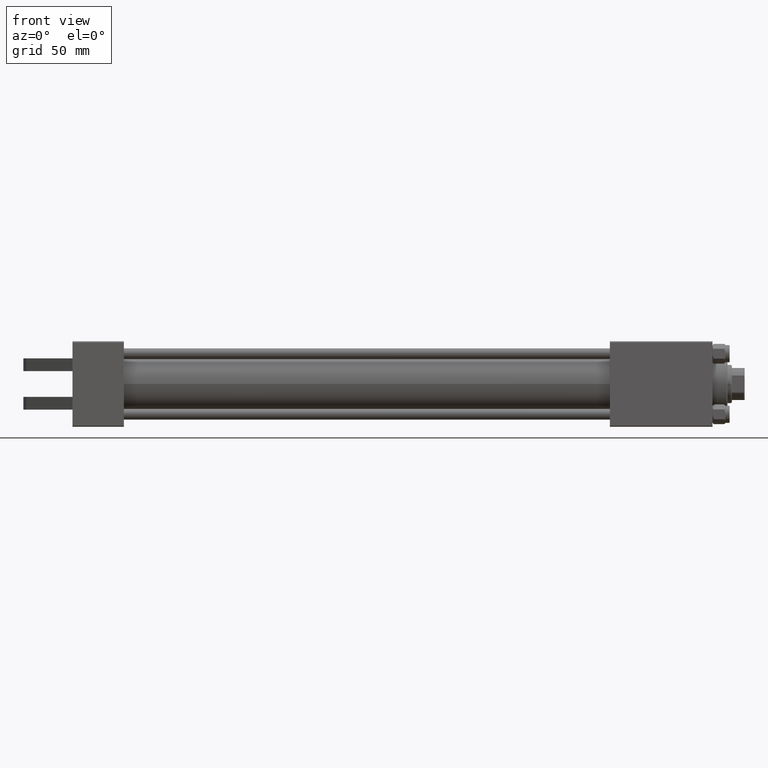
[diagram: clean part render]
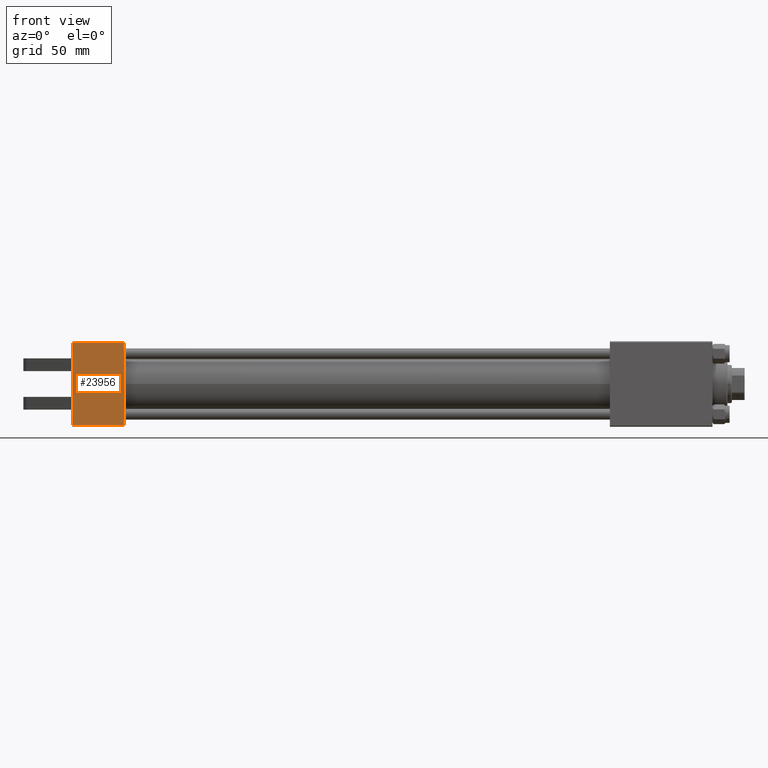
[diagram: same view with one face highlighted and labeled with its STEP entity id]
A machine part, front view. The second image highlights one B-rep face of the part: STEP entity #23956.
In plain terms, the highlighted planar face has unit normal (0, -1, 0).
Its self-contained STEP definition (entity closure, byte-faithful):
#42 = LINE ( 'NONE', #49447, #17676 ) ;
#626 = EDGE_CURVE ( 'NONE', #35391, #32338, #11886, .T. ) ;
#2116 = ORIENTED_EDGE ( 'NONE', *, *, #49440, .F. ) ;
#2410 = CARTESIAN_POINT ( 'NONE',  ( 0.000000000000000000, 6.000000000000000000, -20.00000000000000355 ) ) ;
#3055 = DIRECTION ( 'NONE',  ( -0.000000000000000000, 1.000000000000000000, -0.000000000000000000 ) ) ;
#4831 = ORIENTED_EDGE ( 'NONE', *, *, #29405, .T. ) ;
#5616 = DIRECTION ( 'NONE',  ( 0.000000000000000000, 1.000000000000000000, -1.734723475976806848E-16 ) ) ;
#5864 = FACE_OUTER_BOUND ( 'NONE', #26959, .T. ) ;
#5877 = VERTEX_POINT ( 'NONE', #30567 ) ;
#7116 = VERTEX_POINT ( 'NONE', #8594 ) ;
#7124 = EDGE_CURVE ( 'NONE', #22148, #36785, #35482, .T. ) ;
#8209 = LINE ( 'NONE', #23514, #16329 ) ;
#8520 = DIRECTION ( 'NONE',  ( 1.000000000000000000, 0.000000000000000000, 0.000000000000000000 ) ) ;
#8594 = CARTESIAN_POINT ( 'NONE',  ( 24.00000000000000000, 19.50000000000000711, -20.00000000000000711 ) ) ;
#8847 = DIRECTION ( 'NONE',  ( -0.000000000000000000, -1.000000000000000000, -0.000000000000000000 ) ) ;
#10861 = CARTESIAN_POINT ( 'NONE',  ( 24.00000000000000000, 19.50000000000000711, -20.00000000000000711 ) ) ;
#10992 = CARTESIAN_POINT ( 'NONE',  ( 0.000000000000000000, 20.00000000000000000, -20.00000000000000711 ) ) ;
#11279 = VERTEX_POINT ( 'NONE', #46521 ) ;
#11886 = LINE ( 'NONE', #46539, #28451 ) ;
#14639 = VECTOR ( 'NONE', #48250, 1000.000000000000000 ) ;
#16329 = VECTOR ( 'NONE', #30566, 1000.000000000000000 ) ;
#16357 = ORIENTED_EDGE ( 'NONE', *, *, #626, .T. ) ;
#17410 = VECTOR ( 'NONE', #8847, 1000.000000000000000 ) ;
#17676 = VECTOR ( 'NONE', #3055, 1000.000000000000000 ) ;
#20057 = CARTESIAN_POINT ( 'NONE',  ( 0.000000000000000000, -6.000000000000000000, -20.00000000000000000 ) ) ;
#20389 = ORIENTED_EDGE ( 'NONE', *, *, #28811, .T. ) ;
#20816 = VECTOR ( 'NONE', #42163, 1000.000000000000000 ) ;
#21131 = CARTESIAN_POINT ( 'NONE',  ( 0.000000000000000000, 12.00000000000000000, -20.00000000000000000 ) ) ;
#22148 = VERTEX_POINT ( 'NONE', #31519 ) ;
#23514 = CARTESIAN_POINT ( 'NONE',  ( 24.00000000000000000, 20.00000000000000000, -20.00000000000000711 ) ) ;
#23557 = VECTOR ( 'NONE', #8520, 1000.000000000000000 ) ;
#23956 = ADVANCED_FACE ( 'NONE', ( #5864 ), #28696, .T. ) ;
#24043 = VECTOR ( 'NONE', #38048, 1000.000000000000000 ) ;
#25165 = DIRECTION ( 'NONE',  ( 0.000000000000000000, -1.734723475976806848E-16, -1.000000000000000000 ) ) ;
#26861 = LINE ( 'NONE', #30640, #20816 ) ;
#26959 = EDGE_LOOP ( 'NONE', ( #29391, #4831, #20389, #16357, #34250, #32926, #2116, #45753 ) ) ;
#27311 = EDGE_CURVE ( 'NONE', #11279, #22148, #44236, .T. ) ;
#28451 = VECTOR ( 'NONE', #30986, 1000.000000000000000 ) ;
#28696 = PLANE ( 'NONE',  #32231 ) ;
#28811 = EDGE_CURVE ( 'NONE', #7116, #35391, #8209, .T. ) ;
#29391 = ORIENTED_EDGE ( 'NONE', *, *, #27311, .F. ) ;
#29405 = EDGE_CURVE ( 'NONE', #11279, #7116, #46431, .T. ) ;
#29865 = CARTESIAN_POINT ( 'NONE',  ( 0.000000000000000000, -19.50000000000000711, -20.00000000000000000 ) ) ;
#30566 = DIRECTION ( 'NONE',  ( 0.000000000000000000, -1.000000000000000000, 1.734723475976807094E-16 ) ) ;
#30567 = CARTESIAN_POINT ( 'NONE',  ( 0.000000000000000000, -12.00000000000000000, -20.00000000000000000 ) ) ;
#30640 = CARTESIAN_POINT ( 'NONE',  ( 0.000000000000000000, 20.00000000000000000, -20.00000000000000711 ) ) ;
#30986 = DIRECTION ( 'NONE',  ( -1.000000000000000000, 0.000000000000000000, 0.000000000000000000 ) ) ;
#31519 = CARTESIAN_POINT ( 'NONE',  ( 0.000000000000000000, 12.00000000000000000, -20.00000000000000000 ) ) ;
#32231 = AXIS2_PLACEMENT_3D ( 'NONE', #33437, #25165, #5616 ) ;
#32338 = VERTEX_POINT ( 'NONE', #29865 ) ;
#32926 = ORIENTED_EDGE ( 'NONE', *, *, #47102, .T. ) ;
#33437 = CARTESIAN_POINT ( 'NONE',  ( 24.00000000000000000, 20.00000000000000000, -20.00000000000000711 ) ) ;
#34250 = ORIENTED_EDGE ( 'NONE', *, *, #47990, .F. ) ;
#34782 = LINE ( 'NONE', #45825, #24043 ) ;
#35391 = VERTEX_POINT ( 'NONE', #35735 ) ;
#35482 = LINE ( 'NONE', #21131, #17410 ) ;
#35735 = CARTESIAN_POINT ( 'NONE',  ( 24.00000000000000000, -19.50000000000000711, -20.00000000000000000 ) ) ;
#36785 = VERTEX_POINT ( 'NONE', #2410 ) ;
#38048 = DIRECTION ( 'NONE',  ( 0.000000000000000000, -1.000000000000000000, 1.734723475976807094E-16 ) ) ;
#41212 = VERTEX_POINT ( 'NONE', #20057 ) ;
#42163 = DIRECTION ( 'NONE',  ( 0.000000000000000000, -1.000000000000000000, 1.734723475976807094E-16 ) ) ;
#44236 = LINE ( 'NONE', #10992, #14639 ) ;
#45753 = ORIENTED_EDGE ( 'NONE', *, *, #7124, .F. ) ;
#45825 = CARTESIAN_POINT ( 'NONE',  ( 0.000000000000000000, 20.00000000000000000, -20.00000000000000711 ) ) ;
#46431 = LINE ( 'NONE', #10861, #23557 ) ;
#46521 = CARTESIAN_POINT ( 'NONE',  ( 0.000000000000000000, 19.50000000000000711, -20.00000000000000711 ) ) ;
#46539 = CARTESIAN_POINT ( 'NONE',  ( 0.000000000000000000, -19.50000000000000711, -20.00000000000000000 ) ) ;
#47102 = EDGE_CURVE ( 'NONE', #5877, #41212, #42, .T. ) ;
#47990 = EDGE_CURVE ( 'NONE', #5877, #32338, #26861, .T. ) ;
#48250 = DIRECTION ( 'NONE',  ( 0.000000000000000000, -1.000000000000000000, 1.734723475976807094E-16 ) ) ;
#49440 = EDGE_CURVE ( 'NONE', #36785, #41212, #34782, .T. ) ;
#49447 = CARTESIAN_POINT ( 'NONE',  ( 0.000000000000000000, -12.00000000000000000, -20.00000000000000000 ) ) ;